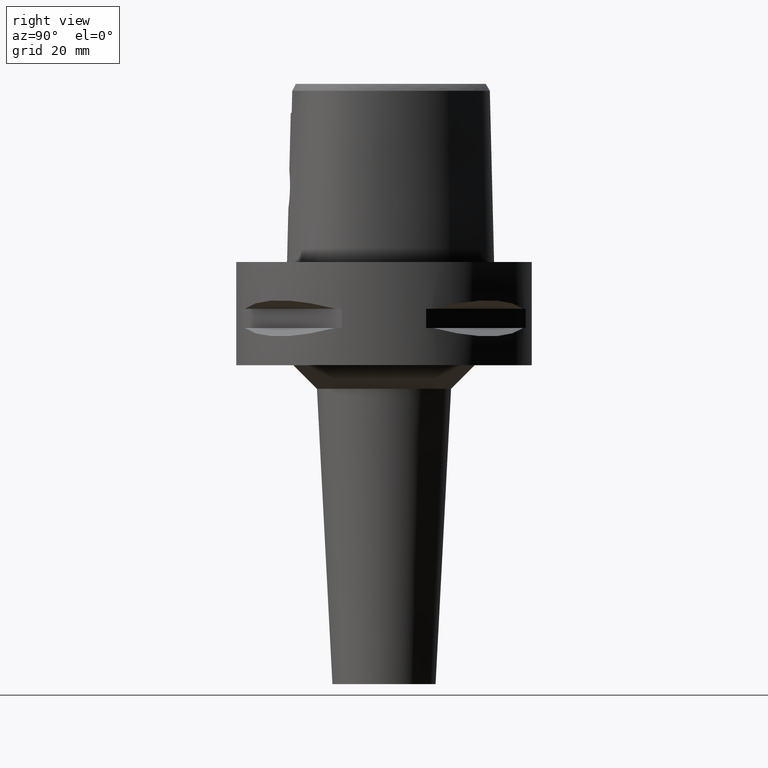
[diagram: clean part render]
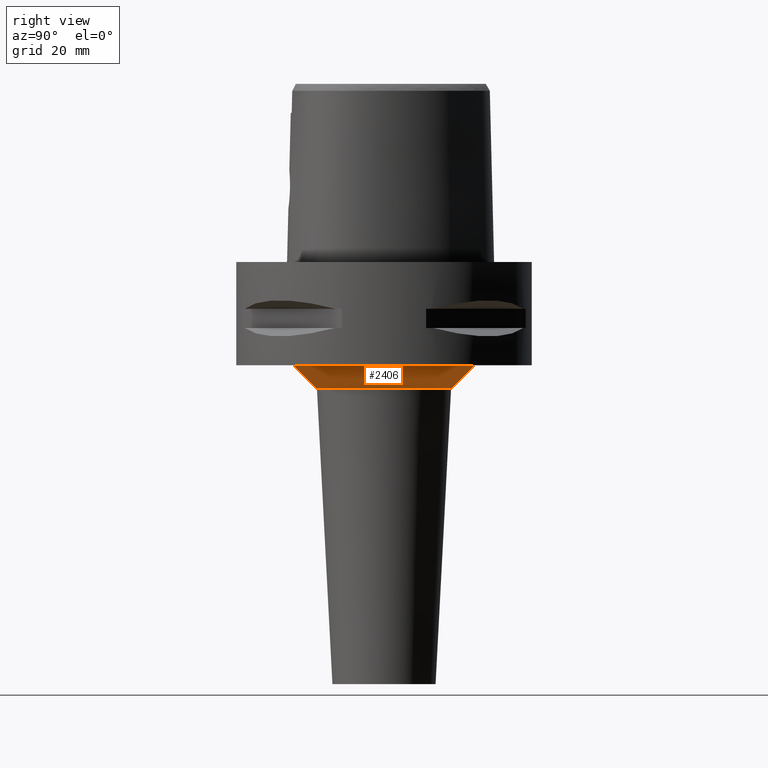
[diagram: same view with one face highlighted and labeled with its STEP entity id]
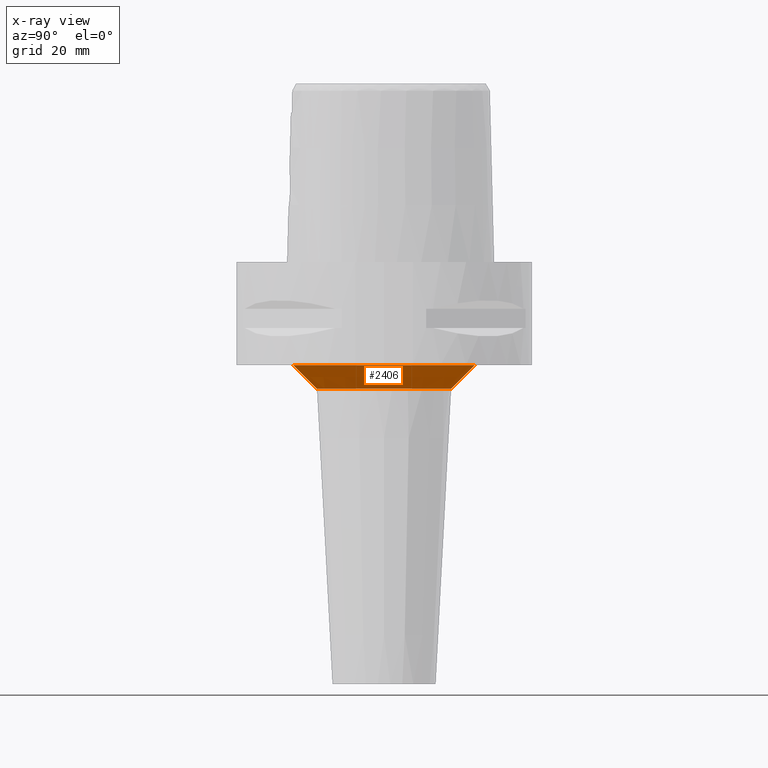
[diagram: x-ray of the same camera — body ghosted, the highlighted face saturated]
A machine part, right view. The second image highlights one B-rep face of the part: STEP entity #2406.
The next image is the same camera in x-ray: the body ghosted, the highlighted face saturated — about 0% of this face is hidden behind the body in this view.
In plain terms, the highlighted conical surface has half-angle 45 deg.
Its self-contained STEP definition (entity closure, byte-faithful):
#532=CARTESIAN_POINT('',(0.E0,0.E0,-2.2E1));
#533=DIRECTION('',(0.E0,0.E0,-1.E0));
#534=DIRECTION('',(0.E0,1.E0,0.E0));
#535=AXIS2_PLACEMENT_3D('',#532,#533,#534);
#540=DIRECTION('',(0.E0,7.071067811863E-1,-7.071067811868E-1));
#541=VECTOR('',#540,7.071067811864E0);
#542=CARTESIAN_POINT('',(0.E0,-1.930169009483E1,-2.2E1));
#543=LINE('',#542,#541);
#555=DIRECTION('',(0.E0,-7.071067811863E-1,-7.071067811868E-1));
#556=VECTOR('',#555,7.071067811864E0);
#557=CARTESIAN_POINT('',(0.E0,1.930169009483E1,-2.2E1));
#558=LINE('',#557,#556);
#569=CARTESIAN_POINT('',(0.E0,0.E0,-2.7E1));
#570=DIRECTION('',(0.E0,0.E0,1.E0));
#571=DIRECTION('',(0.E0,-1.E0,0.E0));
#572=AXIS2_PLACEMENT_3D('',#569,#570,#571);
#1500=CARTESIAN_POINT('',(0.E0,-1.930169009483E1,-2.2E1));
#1501=CARTESIAN_POINT('',(0.E0,1.930169009483E1,-2.2E1));
#1502=VERTEX_POINT('',#1500);
#1503=VERTEX_POINT('',#1501);
#1504=CARTESIAN_POINT('',(0.E0,1.430169009483E1,-2.7E1));
#1505=VERTEX_POINT('',#1504);
#1506=CARTESIAN_POINT('',(0.E0,-1.430169009483E1,-2.7E1));
#1507=VERTEX_POINT('',#1506);
#2394=CARTESIAN_POINT('',(0.E0,0.E0,-2.45E1));
#2395=DIRECTION('',(0.E0,0.E0,1.E0));
#2396=DIRECTION('',(0.E0,1.E0,0.E0));
#2397=AXIS2_PLACEMENT_3D('',#2394,#2395,#2396);
#2398=CONICAL_SURFACE('',#2397,1.680169009483E1,4.5E1);
#2399=ORIENTED_EDGE('',*,*,#2384,.T.);
#2401=ORIENTED_EDGE('',*,*,#2400,.F.);
#2402=ORIENTED_EDGE('',*,*,#2387,.F.);
#2403=ORIENTED_EDGE('',*,*,#2374,.F.);
#2404=EDGE_LOOP('',(#2399,#2401,#2402,#2403));
#2405=FACE_OUTER_BOUND('',#2404,.F.);
#536=CIRCLE('',#535,1.930169009483E1);
#573=CIRCLE('',#572,1.430169009484E1);
#2374=EDGE_CURVE('',#1503,#1502,#536,.T.);
#2384=EDGE_CURVE('',#1503,#1505,#558,.T.);
#2387=EDGE_CURVE('',#1502,#1507,#543,.T.);
#2400=EDGE_CURVE('',#1507,#1505,#573,.T.);
#2406=ADVANCED_FACE('',(#2405),#2398,.T.);